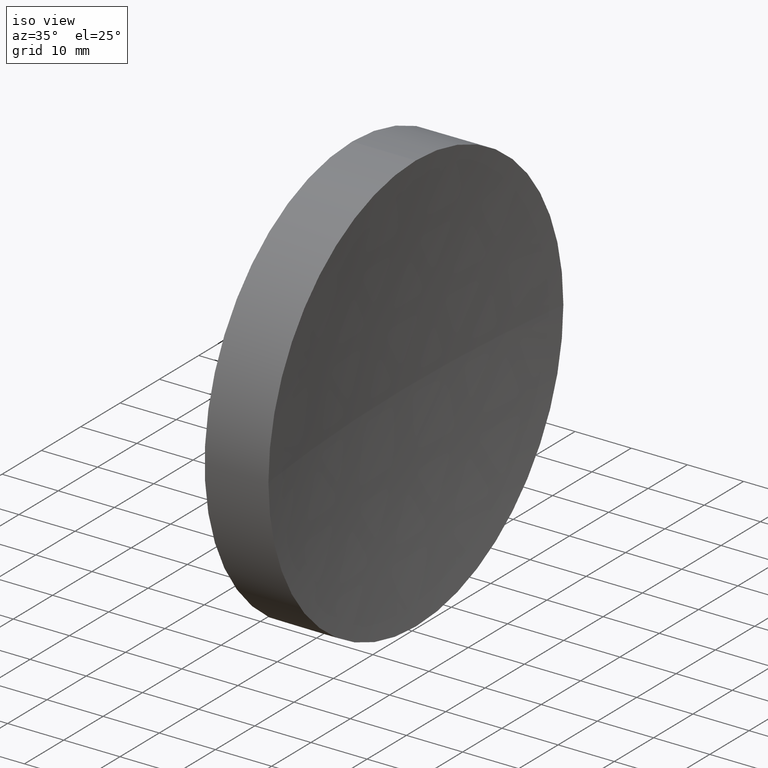
[diagram: clean part render]
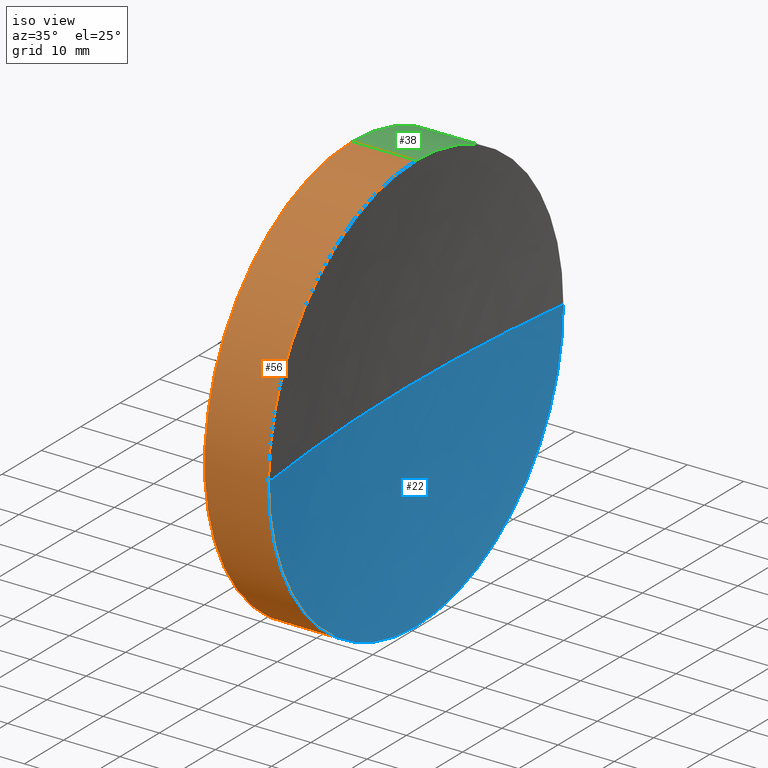
[diagram: same view with three faces highlighted in distinct colors, each labeled with its STEP entity id]
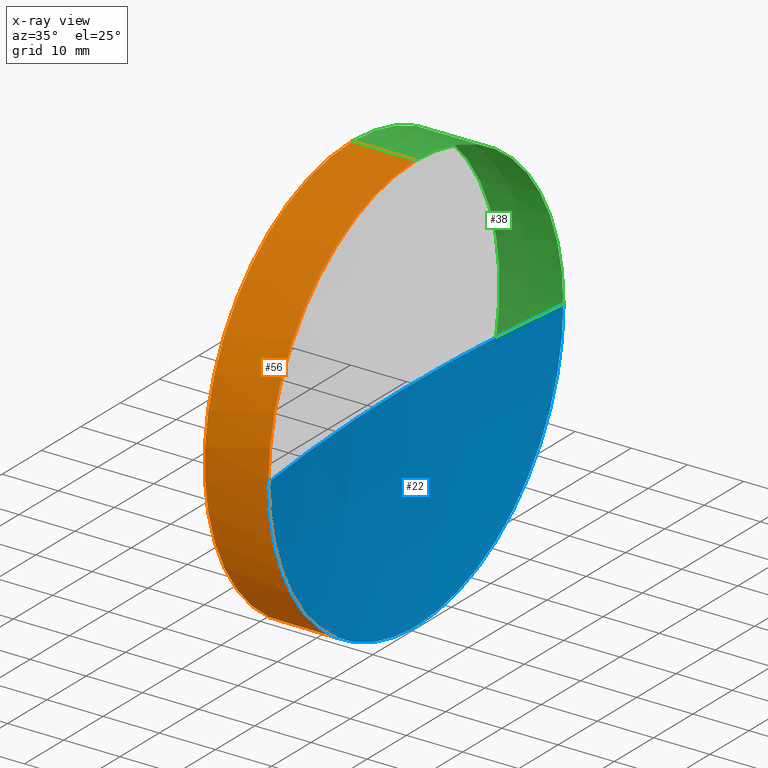
[diagram: x-ray of the same camera — body ghosted, the three highlighted faces saturated]
A machine part, iso view with three faces highlighted in distinct colors.
The next image is the same camera in x-ray (body ghosted, the three faces saturated) — at least one of them is partly hidden behind the body in this view.
Their STEP definitions:

[orange] entity #56 — the highlighted cylindrical surface (partial cylindrical patch) has radius 37.5 mm, axis along (-1, -0, -0).
#2 = AXIS2_PLACEMENT_3D ( 'NONE', #142, #29, #145 ) ;
#9 = CARTESIAN_POINT ( 'NONE',  ( 217.9702860043302100, 138.7560422467448700, 0.0000000000000000000 ) ) ;
#10 = CIRCLE ( 'NONE', #68, 37.50000000000000700 ) ;
#25 = ORIENTED_EDGE ( 'NONE', *, *, #183, .T. ) ;
#29 = DIRECTION ( 'NONE',  ( -1.000000000000000000, -0.0000000000000000000, -0.0000000000000000000 ) ) ;
#36 = VERTEX_POINT ( 'NONE', #45 ) ;
#42 = EDGE_CURVE ( 'NONE', #138, #136, #69, .T. ) ;
#45 = CARTESIAN_POINT ( 'NONE',  ( 230.1996119052661200, 138.7560422467448700, 37.50000000000000700 ) ) ;
#53 = EDGE_CURVE ( 'NONE', #116, #88, #58, .T. ) ;
#56 = ADVANCED_FACE ( 'NONE', ( #83 ), #60, .T. ) ;
#58 = CIRCLE ( 'NONE', #2, 37.50000000000000700 ) ;
#59 = CARTESIAN_POINT ( 'NONE',  ( 217.9702860043302100, 138.7560422467448700, -37.50000000000000700 ) ) ;
#60 = CYLINDRICAL_SURFACE ( 'NONE', #90, 37.50000000000000700 ) ;
#64 = CARTESIAN_POINT ( 'NONE',  ( 230.1996119052661200, 138.7560422467448700, -37.50000000000000700 ) ) ;
#68 = AXIS2_PLACEMENT_3D ( 'NONE', #76, #182, #110 ) ;
#69 = LINE ( 'NONE', #59, #121 ) ;
#74 = EDGE_CURVE ( 'NONE', #88, #36, #149, .T. ) ;
#76 = CARTESIAN_POINT ( 'NONE',  ( 230.1996119052661200, 138.7560422467448700, 0.0000000000000000000 ) ) ;
#80 = DIRECTION ( 'NONE',  ( 0.0000000000000000000, 0.0000000000000000000, 1.000000000000000000 ) ) ;
#83 = FACE_OUTER_BOUND ( 'NONE', #170, .T. ) ;
#84 = ORIENTED_EDGE ( 'NONE', *, *, #74, .T. ) ;
#88 = VERTEX_POINT ( 'NONE', #144 ) ;
#90 = AXIS2_PLACEMENT_3D ( 'NONE', #9, #130, #158 ) ;
#101 = AXIS2_PLACEMENT_3D ( 'NONE', #134, #112, #80 ) ;
#102 = DIRECTION ( 'NONE',  ( -1.000000000000000000, -0.0000000000000000000, -0.0000000000000000000 ) ) ;
#110 = DIRECTION ( 'NONE',  ( 0.0000000000000000000, 0.0000000000000000000, 1.000000000000000000 ) ) ;
#112 = DIRECTION ( 'NONE',  ( -1.000000000000000000, -0.0000000000000000000, -0.0000000000000000000 ) ) ;
#115 = CIRCLE ( 'NONE', #101, 37.50000000000000700 ) ;
#116 = VERTEX_POINT ( 'NONE', #180 ) ;
#120 = DIRECTION ( 'NONE',  ( -1.000000000000000000, -0.0000000000000000000, -0.0000000000000000000 ) ) ;
#121 = VECTOR ( 'NONE', #102, 1000.000000000000000 ) ;
#127 = ORIENTED_EDGE ( 'NONE', *, *, #53, .T. ) ;
#130 = DIRECTION ( 'NONE',  ( -1.000000000000000000, -0.0000000000000000000, -0.0000000000000000000 ) ) ;
#134 = CARTESIAN_POINT ( 'NONE',  ( 241.5525897013507700, 138.7560422467448700, 0.0000000000000000000 ) ) ;
#136 = VERTEX_POINT ( 'NONE', #64 ) ;
#138 = VERTEX_POINT ( 'NONE', #160 ) ;
#142 = CARTESIAN_POINT ( 'NONE',  ( 241.5525897013507700, 138.7560422467448700, 0.0000000000000000000 ) ) ;
#144 = CARTESIAN_POINT ( 'NONE',  ( 241.5525897013507700, 138.7560422467448700, 37.50000000000000700 ) ) ;
#145 = DIRECTION ( 'NONE',  ( 0.0000000000000000000, 0.0000000000000000000, 1.000000000000000000 ) ) ;
#149 = LINE ( 'NONE', #157, #167 ) ;
#157 = CARTESIAN_POINT ( 'NONE',  ( 217.9702860043302100, 138.7560422467448700, 37.50000000000000700 ) ) ;
#158 = DIRECTION ( 'NONE',  ( 0.0000000000000000000, 0.0000000000000000000, 1.000000000000000000 ) ) ;
#160 = CARTESIAN_POINT ( 'NONE',  ( 241.5525897013507700, 138.7560422467448700, -37.50000000000000700 ) ) ;
#163 = EDGE_CURVE ( 'NONE', #136, #36, #10, .T. ) ;
#167 = VECTOR ( 'NONE', #120, 1000.000000000000000 ) ;
#170 = EDGE_LOOP ( 'NONE', ( #172, #25, #127, #84, #185 ) ) ;
#172 = ORIENTED_EDGE ( 'NONE', *, *, #42, .F. ) ;
#180 = CARTESIAN_POINT ( 'NONE',  ( 241.5525897013507400, 101.2560422467448000, -4.592425496802562500E-015 ) ) ;
#182 = DIRECTION ( 'NONE',  ( -1.000000000000000000, -0.0000000000000000000, -0.0000000000000000000 ) ) ;
#183 = EDGE_CURVE ( 'NONE', #138, #116, #115, .T. ) ;
#185 = ORIENTED_EDGE ( 'NONE', *, *, #163, .F. ) ;

[blue] entity #22 — the highlighted spherical surface has radius 300 mm.
#3 = ORIENTED_EDGE ( 'NONE', *, *, #111, .T. ) ;
#15 = SPHERICAL_SURFACE ( 'NONE', #87, 300.0000000000000600 ) ;
#22 = ADVANCED_FACE ( 'NONE', ( #124 ), #15, .F. ) ;
#32 = DIRECTION ( 'NONE',  ( 0.0000000000000000000, 1.224646799147353200E-016, -1.000000000000000000 ) ) ;
#34 = AXIS2_PLACEMENT_3D ( 'NONE', #156, #63, #107 ) ;
#35 = ORIENTED_EDGE ( 'NONE', *, *, #129, .F. ) ;
#37 = AXIS2_PLACEMENT_3D ( 'NONE', #77, #32, #97 ) ;
#63 = DIRECTION ( 'NONE',  ( -1.000000000000000000, -0.0000000000000000000, -0.0000000000000000000 ) ) ;
#66 = CIRCLE ( 'NONE', #34, 37.50000000000000700 ) ;
#72 = EDGE_CURVE ( 'NONE', #73, #138, #66, .T. ) ;
#73 = VERTEX_POINT ( 'NONE', #105 ) ;
#77 = CARTESIAN_POINT ( 'NONE',  ( 539.1996121961171900, 138.7560422467447000, 0.0000000000000000000 ) ) ;
#80 = DIRECTION ( 'NONE',  ( 0.0000000000000000000, 0.0000000000000000000, 1.000000000000000000 ) ) ;
#87 = AXIS2_PLACEMENT_3D ( 'NONE', #177, #155, #104 ) ;
#94 = AXIS2_PLACEMENT_3D ( 'NONE', #178, #106, #164 ) ;
#97 = DIRECTION ( 'NONE',  ( 0.0000000000000000000, 1.000000000000000000, 1.224646799147353200E-016 ) ) ;
#101 = AXIS2_PLACEMENT_3D ( 'NONE', #134, #112, #80 ) ;
#103 = ORIENTED_EDGE ( 'NONE', *, *, #72, .F. ) ;
#104 = DIRECTION ( 'NONE',  ( 0.0000000000000000000, 1.000000000000000000, 0.0000000000000000000 ) ) ;
#105 = CARTESIAN_POINT ( 'NONE',  ( 241.5525897013507400, 176.2560422467447800, 0.0000000000000000000 ) ) ;
#106 = DIRECTION ( 'NONE',  ( 0.0000000000000000000, 0.0000000000000000000, 1.000000000000000000 ) ) ;
#107 = DIRECTION ( 'NONE',  ( 0.0000000000000000000, 0.0000000000000000000, 1.000000000000000000 ) ) ;
#111 = EDGE_CURVE ( 'NONE', #73, #122, #135, .T. ) ;
#112 = DIRECTION ( 'NONE',  ( -1.000000000000000000, -0.0000000000000000000, -0.0000000000000000000 ) ) ;
#115 = CIRCLE ( 'NONE', #101, 37.50000000000000700 ) ;
#116 = VERTEX_POINT ( 'NONE', #180 ) ;
#118 = ORIENTED_EDGE ( 'NONE', *, *, #183, .F. ) ;
#122 = VERTEX_POINT ( 'NONE', #146 ) ;
#124 = FACE_OUTER_BOUND ( 'NONE', #175, .T. ) ;
#129 = EDGE_CURVE ( 'NONE', #116, #122, #137, .T. ) ;
#134 = CARTESIAN_POINT ( 'NONE',  ( 241.5525897013507700, 138.7560422467448700, 0.0000000000000000000 ) ) ;
#135 = CIRCLE ( 'NONE', #94, 300.0000000000000600 ) ;
#137 = CIRCLE ( 'NONE', #37, 300.0000000000000600 ) ;
#138 = VERTEX_POINT ( 'NONE', #160 ) ;
#146 = CARTESIAN_POINT ( 'NONE',  ( 239.1996121961171900, 138.7560422467447300, 0.0000000000000000000 ) ) ;
#155 = DIRECTION ( 'NONE',  ( 0.0000000000000000000, 0.0000000000000000000, -1.000000000000000000 ) ) ;
#156 = CARTESIAN_POINT ( 'NONE',  ( 241.5525897013507700, 138.7560422467448700, 0.0000000000000000000 ) ) ;
#160 = CARTESIAN_POINT ( 'NONE',  ( 241.5525897013507700, 138.7560422467448700, -37.50000000000000700 ) ) ;
#164 = DIRECTION ( 'NONE',  ( 1.000000000000000000, 0.0000000000000000000, 0.0000000000000000000 ) ) ;
#175 = EDGE_LOOP ( 'NONE', ( #35, #118, #103, #3 ) ) ;
#177 = CARTESIAN_POINT ( 'NONE',  ( 539.1996121961171900, 138.7560422467447000, 0.0000000000000000000 ) ) ;
#178 = CARTESIAN_POINT ( 'NONE',  ( 539.1996121961171900, 138.7560422467447000, 0.0000000000000000000 ) ) ;
#180 = CARTESIAN_POINT ( 'NONE',  ( 241.5525897013507400, 101.2560422467448000, -4.592425496802562500E-015 ) ) ;
#183 = EDGE_CURVE ( 'NONE', #138, #116, #115, .T. ) ;

[green] entity #38 — the highlighted cylindrical surface (partial cylindrical patch) has radius 37.5 mm, axis along (-1, -0, -0).
#6 = CARTESIAN_POINT ( 'NONE',  ( 217.9702860043302100, 138.7560422467448700, 0.0000000000000000000 ) ) ;
#8 = DIRECTION ( 'NONE',  ( 0.0000000000000000000, 0.0000000000000000000, 1.000000000000000000 ) ) ;
#11 = ORIENTED_EDGE ( 'NONE', *, *, #42, .T. ) ;
#18 = AXIS2_PLACEMENT_3D ( 'NONE', #27, #92, #8 ) ;
#27 = CARTESIAN_POINT ( 'NONE',  ( 241.5525897013507700, 138.7560422467448700, 0.0000000000000000000 ) ) ;
#34 = AXIS2_PLACEMENT_3D ( 'NONE', #156, #63, #107 ) ;
#36 = VERTEX_POINT ( 'NONE', #45 ) ;
#38 = ADVANCED_FACE ( 'NONE', ( #113 ), #184, .T. ) ;
#42 = EDGE_CURVE ( 'NONE', #138, #136, #69, .T. ) ;
#43 = DIRECTION ( 'NONE',  ( -1.000000000000000000, -0.0000000000000000000, -0.0000000000000000000 ) ) ;
#45 = CARTESIAN_POINT ( 'NONE',  ( 230.1996119052661200, 138.7560422467448700, 37.50000000000000700 ) ) ;
#46 = DIRECTION ( 'NONE',  ( -1.000000000000000000, -0.0000000000000000000, -0.0000000000000000000 ) ) ;
#48 = ORIENTED_EDGE ( 'NONE', *, *, #72, .T. ) ;
#50 = CARTESIAN_POINT ( 'NONE',  ( 230.1996119052661200, 138.7560422467448700, 0.0000000000000000000 ) ) ;
#55 = EDGE_CURVE ( 'NONE', #36, #136, #174, .T. ) ;
#59 = CARTESIAN_POINT ( 'NONE',  ( 217.9702860043302100, 138.7560422467448700, -37.50000000000000700 ) ) ;
#62 = DIRECTION ( 'NONE',  ( 0.0000000000000000000, 0.0000000000000000000, 1.000000000000000000 ) ) ;
#63 = DIRECTION ( 'NONE',  ( -1.000000000000000000, -0.0000000000000000000, -0.0000000000000000000 ) ) ;
#64 = CARTESIAN_POINT ( 'NONE',  ( 230.1996119052661200, 138.7560422467448700, -37.50000000000000700 ) ) ;
#66 = CIRCLE ( 'NONE', #34, 37.50000000000000700 ) ;
#69 = LINE ( 'NONE', #59, #121 ) ;
#71 = DIRECTION ( 'NONE',  ( 0.0000000000000000000, 0.0000000000000000000, 1.000000000000000000 ) ) ;
#72 = EDGE_CURVE ( 'NONE', #73, #138, #66, .T. ) ;
#73 = VERTEX_POINT ( 'NONE', #105 ) ;
#74 = EDGE_CURVE ( 'NONE', #88, #36, #149, .T. ) ;
#82 = AXIS2_PLACEMENT_3D ( 'NONE', #6, #43, #71 ) ;
#88 = VERTEX_POINT ( 'NONE', #144 ) ;
#89 = ORIENTED_EDGE ( 'NONE', *, *, #74, .F. ) ;
#92 = DIRECTION ( 'NONE',  ( -1.000000000000000000, -0.0000000000000000000, -0.0000000000000000000 ) ) ;
#95 = ORIENTED_EDGE ( 'NONE', *, *, #55, .F. ) ;
#100 = EDGE_CURVE ( 'NONE', #88, #73, #171, .T. ) ;
#102 = DIRECTION ( 'NONE',  ( -1.000000000000000000, -0.0000000000000000000, -0.0000000000000000000 ) ) ;
#105 = CARTESIAN_POINT ( 'NONE',  ( 241.5525897013507400, 176.2560422467447800, 0.0000000000000000000 ) ) ;
#107 = DIRECTION ( 'NONE',  ( 0.0000000000000000000, 0.0000000000000000000, 1.000000000000000000 ) ) ;
#113 = FACE_OUTER_BOUND ( 'NONE', #154, .T. ) ;
#114 = AXIS2_PLACEMENT_3D ( 'NONE', #50, #46, #62 ) ;
#120 = DIRECTION ( 'NONE',  ( -1.000000000000000000, -0.0000000000000000000, -0.0000000000000000000 ) ) ;
#121 = VECTOR ( 'NONE', #102, 1000.000000000000000 ) ;
#136 = VERTEX_POINT ( 'NONE', #64 ) ;
#138 = VERTEX_POINT ( 'NONE', #160 ) ;
#144 = CARTESIAN_POINT ( 'NONE',  ( 241.5525897013507700, 138.7560422467448700, 37.50000000000000700 ) ) ;
#149 = LINE ( 'NONE', #157, #167 ) ;
#154 = EDGE_LOOP ( 'NONE', ( #48, #11, #95, #89, #176 ) ) ;
#156 = CARTESIAN_POINT ( 'NONE',  ( 241.5525897013507700, 138.7560422467448700, 0.0000000000000000000 ) ) ;
#157 = CARTESIAN_POINT ( 'NONE',  ( 217.9702860043302100, 138.7560422467448700, 37.50000000000000700 ) ) ;
#160 = CARTESIAN_POINT ( 'NONE',  ( 241.5525897013507700, 138.7560422467448700, -37.50000000000000700 ) ) ;
#167 = VECTOR ( 'NONE', #120, 1000.000000000000000 ) ;
#171 = CIRCLE ( 'NONE', #18, 37.50000000000000700 ) ;
#174 = CIRCLE ( 'NONE', #114, 37.50000000000000700 ) ;
#176 = ORIENTED_EDGE ( 'NONE', *, *, #100, .T. ) ;
#184 = CYLINDRICAL_SURFACE ( 'NONE', #82, 37.50000000000000700 ) ;